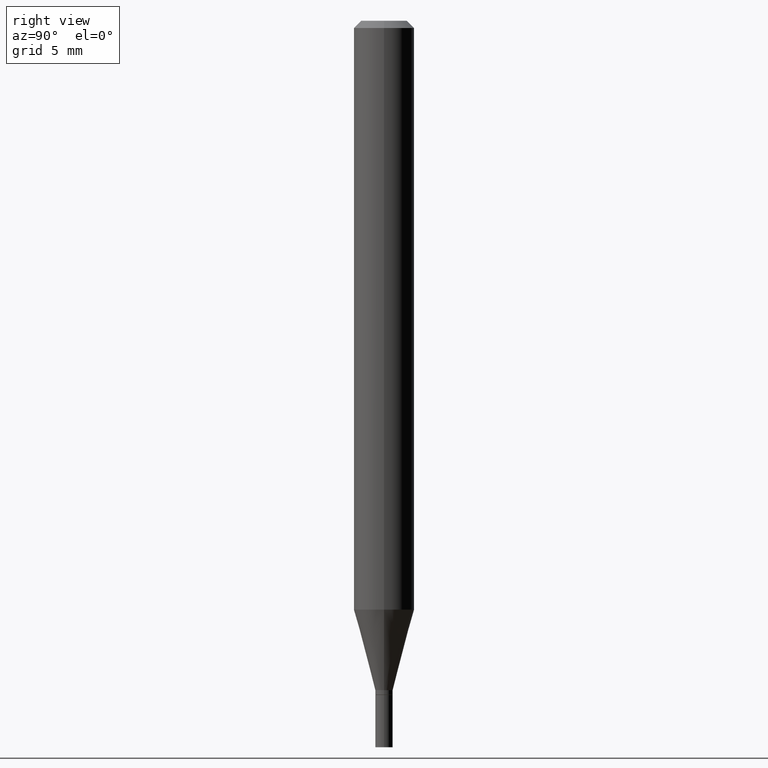
[diagram: clean part render]
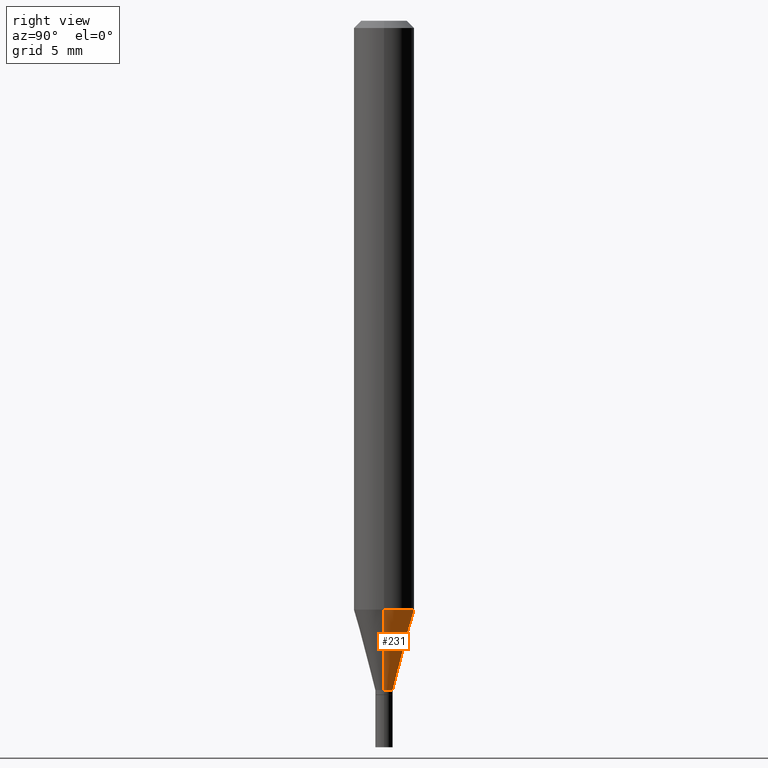
[diagram: same view with one face highlighted and labeled with its STEP entity id]
A machine part, right view. The second image highlights one B-rep face of the part: STEP entity #231.
In plain terms, the highlighted conical surface has half-angle 15 deg.
Its self-contained STEP definition (entity closure, byte-faithful):
#25 = VERTEX_POINT ( 'NONE', #104 ) ;
#54 = CARTESIAN_POINT ( 'NONE',  ( 3.379637890147859239E-29, -4.825227210281227557E-15, -1.382000000000000117 ) ) ;
#59 = CARTESIAN_POINT ( 'NONE',  ( -0.06250000000000001388, -3.801285834545430586E-15, -1.215923739063185183 ) ) ;
#60 = VERTEX_POINT ( 'NONE', #146 ) ;
#73 = DIRECTION ( 'NONE',  ( 1.000000000000000000, -6.982962677686270655E-15, 0.000000000000000000 ) ) ;
#82 = CARTESIAN_POINT ( 'NONE',  ( -0.01799999999999991884, -4.249307676194920787E-15, -1.382000000000000117 ) ) ;
#83 = AXIS2_PLACEMENT_3D ( 'NONE', #150, #295, #439 ) ;
#95 = CARTESIAN_POINT ( 'NONE',  ( -0.01799999999999991884, -4.697329517844410199E-15, -1.382000000000000117 ) ) ;
#100 = ORIENTED_EDGE ( 'NONE', *, *, #437, .F. ) ;
#104 = CARTESIAN_POINT ( 'NONE',  ( 0.06250000000000001388, -4.681810211750884871E-15, -1.215923739063185183 ) ) ;
#110 = EDGE_CURVE ( 'NONE', #60, #25, #292, .T. ) ;
#125 = VERTEX_POINT ( 'NONE', #82 ) ;
#135 = CARTESIAN_POINT ( 'NONE',  ( 2.973503574579014958E-29, -4.245375044395493202E-15, -1.215923739063185183 ) ) ;
#146 = CARTESIAN_POINT ( 'NONE',  ( 0.01799999999999991884, -4.950920538479579759E-15, -1.382000000000000117 ) ) ;
#150 = CARTESIAN_POINT ( 'NONE',  ( 3.379637890147859239E-29, -4.825227210281227557E-15, -1.382000000000000117 ) ) ;
#156 = DIRECTION ( 'NONE',  ( 1.000000000000000000, -6.982962677686256455E-15, 0.000000000000000000 ) ) ;
#185 = DIRECTION ( 'NONE',  ( -2.445468806185136597E-29, 3.491481338843145583E-15, 1.000000000000000000 ) ) ;
#218 = DIRECTION ( 'NONE',  ( 0.2588190451025211836, 1.565188264969622559E-15, 0.9659258262890679791 ) ) ;
#231 = ADVANCED_FACE ( 'NONE', ( #329 ), #324, .T. ) ;
#241 = DIRECTION ( 'NONE',  ( -2.445468806185136597E-29, 3.491481338843145583E-15, 1.000000000000000000 ) ) ;
#246 = AXIS2_PLACEMENT_3D ( 'NONE', #135, #241, #73 ) ;
#278 = CIRCLE ( 'NONE', #246, 0.06250000000000000000 ) ;
#292 = LINE ( 'NONE', #371, #348 ) ;
#294 = AXIS2_PLACEMENT_3D ( 'NONE', #54, #185, #156 ) ;
#295 = DIRECTION ( 'NONE',  ( -2.445468806185136597E-29, 3.491481338843145583E-15, 1.000000000000000000 ) ) ;
#305 = EDGE_CURVE ( 'NONE', #125, #342, #417, .T. ) ;
#323 = EDGE_LOOP ( 'NONE', ( #416, #456, #100, #430 ) ) ;
#324 = CONICAL_SURFACE ( 'NONE', #83, 0.01799999999999991884, 0.2617993877991499074 ) ;
#329 = FACE_OUTER_BOUND ( 'NONE', #323, .T. ) ;
#342 = VERTEX_POINT ( 'NONE', #59 ) ;
#348 = VECTOR ( 'NONE', #218, 39.37007874015748854 ) ;
#371 = CARTESIAN_POINT ( 'NONE',  ( 0.01799999999999991884, -4.950920538479579759E-15, -1.382000000000000117 ) ) ;
#384 = CIRCLE ( 'NONE', #294, 0.01799999999999991884 ) ;
#409 = EDGE_CURVE ( 'NONE', #60, #125, #384, .T. ) ;
#416 = ORIENTED_EDGE ( 'NONE', *, *, #409, .T. ) ;
#417 = LINE ( 'NONE', #95, #458 ) ;
#430 = ORIENTED_EDGE ( 'NONE', *, *, #110, .F. ) ;
#437 = EDGE_CURVE ( 'NONE', #25, #342, #278, .T. ) ;
#439 = DIRECTION ( 'NONE',  ( 1.000000000000000000, -6.982962677686256455E-15, 0.000000000000000000 ) ) ;
#451 = DIRECTION ( 'NONE',  ( -0.2588190451025211836, 5.211531920934547886E-15, 0.9659258262890679791 ) ) ;
#456 = ORIENTED_EDGE ( 'NONE', *, *, #305, .T. ) ;
#458 = VECTOR ( 'NONE', #451, 39.37007874015748854 ) ;